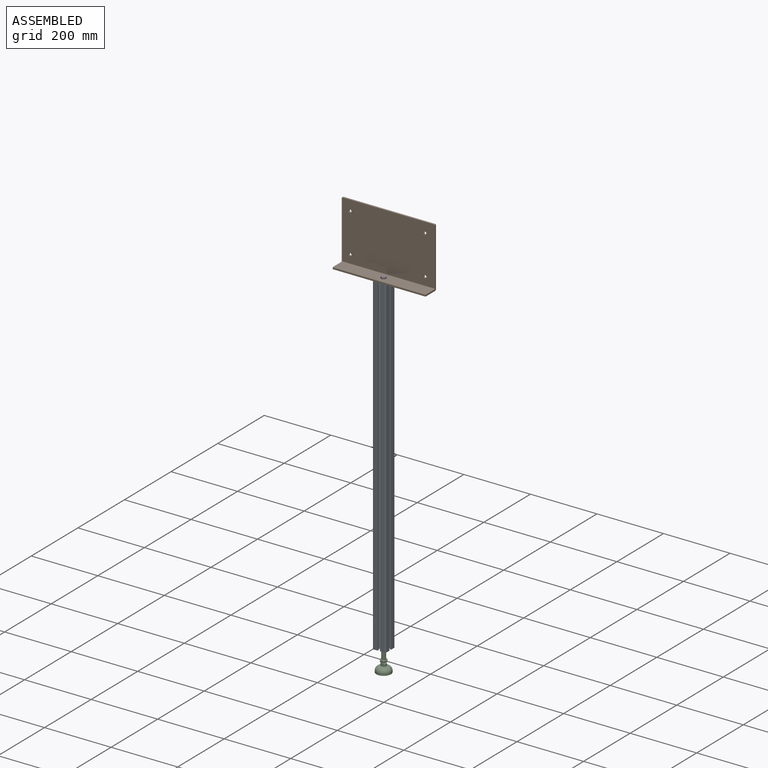
[diagram: assembled view]
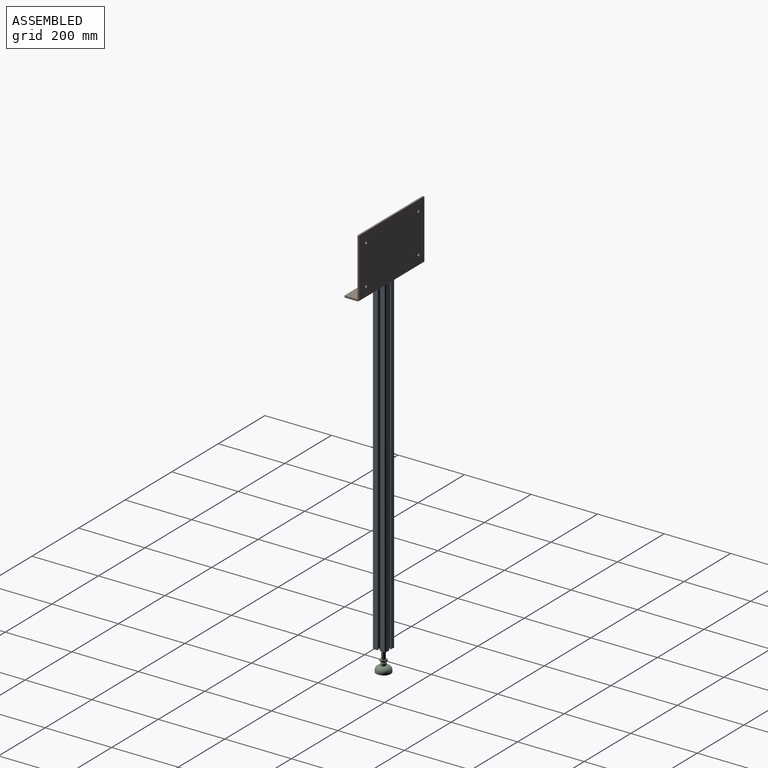
[diagram: assembled view, second angle]
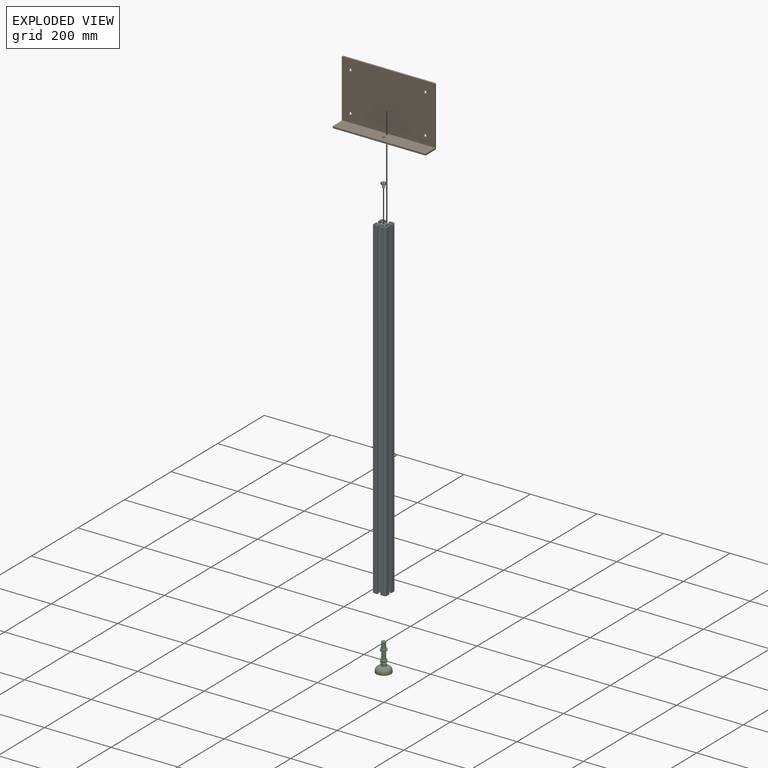
[diagram: exploded view]
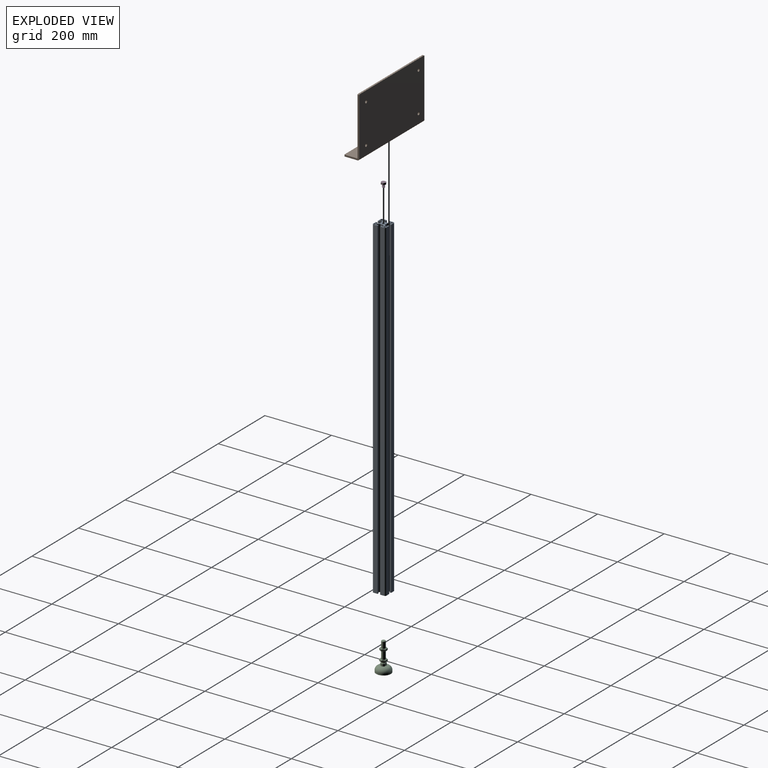
[diagram: exploded view, second angle]
ASSEMBLY  parts=4 mates=3
PART A: 87 faces, bbox 40x40x1000 mm
  f0: plane 1000x12mm, normal (0,-1,0), area 12000mm2, adj f3,f12,f47,f86
  f1: plane 1000x12mm, normal (1,0,0), area 12000mm2, adj f3,f6,f75,f86
  f2: plane 1000x12mm, normal (0,1,0), area 12000mm2, adj f3,f8,f60,f86
  f3: plane 40x40mm, normal (0,0,-1), area 685.6mm2, adj f0,f1,f2,f4,f5,f6,f7,f8
  f4: plane 1000x12mm, normal (-1,0,0), area 12000mm2, adj f3,f10,f37,f86
  f5: plane 1000x12mm, normal (0,-1,0), area 12000mm2, adj f3,f6,f59,f86
  f6: cylinder r=4mm len=1000mm, axis (0,0,-1), area 6283.2mm2, adj f1,f3,f5,f86
  f7: plane 1000x12mm, normal (1,0,0), area 12000mm2, adj f3,f8,f74,f86
  f8: cylinder r=4mm len=1000mm, axis (0,0,-1), area 6283.2mm2, adj f2,f3,f7,f86
  f9: plane 1000x12mm, normal (0,1,0), area 12000mm2, adj f3,f10,f72,f86
  f10: cylinder r=4mm len=1000mm, axis (0,0,-1), area 6283.2mm2, adj f3,f4,f9,f86
  f11: plane 1000x12mm, normal (-1,0,0), area 12000mm2, adj f3,f12,f36,f86
  f12: cylinder r=4mm len=1000mm, axis (0,0,-1), area 6283.2mm2, adj f0,f3,f11,f86
  f13: cylinder r=3.4mm len=1000mm, axis (0,0,-1), area 21362.8mm2, adj f3,f86
  f14: plane 1000x4mm, normal (0,-1,0), area 4000mm2, adj f3,f15,f18,f86
  f15: plane 1000x6mm, normal (-1,0,0), area 6000mm2, adj f3,f14,f16,f86
  f16: plane 1000x6mm, normal (0,1,0), area 6000mm2, adj f3,f15,f17,f86
  f17: plane 1000x4mm, normal (1,0,0), area 4000mm2, adj f3,f16,f18,f86
  f18: cylinder r=2mm len=1000mm, axis (0,0,1), area 3141.6mm2, adj f3,f14,f17,f86
  f19: plane 1000x4mm, normal (0,1,0), area 4000mm2, adj f3,f20,f23,f86
  f20: plane 1000x6mm, normal (1,0,0), area 6000mm2, adj f3,f19,f21,f86
  f21: plane 1000x6mm, normal (0,-1,0), area 6000mm2, adj f3,f20,f22,f86
  f22: plane 1000x4mm, normal (-1,0,0), area 4000mm2, adj f3,f21,f23,f86
  f23: cylinder r=2mm len=1000mm, axis (0,0,1), area 3141.6mm2, adj f3,f19,f22,f86
  f24: plane 1000x4mm, normal (1,0,0), area 4000mm2, adj f3,f25,f28,f86
  f25: plane 1000x6mm, normal (0,-1,0), area 6000mm2, adj f3,f24,f26,f86
  f26: plane 1000x6mm, normal (-1,0,0), area 6000mm2, adj f3,f25,f27,f86
  f27: plane 1000x4mm, normal (0,1,0), area 4000mm2, adj f3,f26,f28,f86
  f28: cylinder r=2mm len=1000mm, axis (0,0,1), area 3141.6mm2, adj f3,f24,f27,f86
  f29: plane 1000x4mm, normal (-1,0,0), area 4000mm2, adj f3,f30,f33,f86
  f30: plane 1000x6mm, normal (0,1,0), area 6000mm2, adj f3,f29,f31,f86
  f31: plane 1000x6mm, normal (1,0,0), area 6000mm2, adj f3,f30,f32,f86
  f32: plane 1000x4mm, normal (0,-1,0), area 4000mm2, adj f3,f31,f33,f86
  f33: cylinder r=2mm len=1000mm, axis (0,0,1), area 3141.6mm2, adj f3,f29,f32,f86
  f34: plane 1000x1.85mm, normal (0,-1,0), area 1850mm2, adj f3,f35,f46,f86
  f35: plane 1000x2.72mm, normal (1,0,0), area 2717.9mm2, adj f3,f34,f36,f86
  f36: plane 1000x4.5mm, normal (0,1,0), area 4500mm2, adj f3,f11,f35,f86
  f37: plane 1000x4.5mm, normal (0,-1,0), area 4500mm2, adj f3,f4,f38,f86
  f38: plane 1000x2.72mm, normal (1,0,0), area 2717.9mm2, adj f3,f37,f39,f86
  f39: plane 1000x1.85mm, normal (0,1,0), area 1850mm2, adj f3,f38,f40,f86
  f40: plane 1000x3.5mm, normal (1,0,0), area 3503mm2, adj f3,f39,f41,f86
  f41: plane 1000x5.35mm, normal (0,-1,0), area 5350mm2, adj f3,f40,f42,f86
  f42: plane 1000x6.22mm, normal (-0.83,-0.56,0), area 7534.1mm2, adj f3,f41,f43,f86
  f43: plane 1000x8mm, normal (-1,0,0), area 8000mm2, adj f3,f42,f44,f86
  f44: plane 1000x6.22mm, normal (-0.83,0.56,0), area 7534.1mm2, adj f3,f43,f45,f86
  f45: plane 1000x5.35mm, normal (0,1,0), area 5350mm2, adj f3,f44,f46,f86
  f46: plane 1000x3.5mm, normal (1,0,0), area 3503mm2, adj f3,f34,f45,f86
  f47: plane 1000x4.5mm, normal (1,0,0), area 4500mm2, adj f0,f3,f48,f86
  f48: plane 1000x2.72mm, normal (0,1,0), area 2717.9mm2, adj f3,f47,f49,f86
  f49: plane 1000x1.85mm, normal (-1,0,0), area 1850mm2, adj f3,f48,f50,f86
  f50: plane 1000x3.5mm, normal (0,1,0), area 3503mm2, adj f3,f49,f51,f86
  f51: plane 1000x5.35mm, normal (1,0,0), area 5350mm2, adj f3,f50,f52,f86
  f52: plane 1000x6.22mm, normal (0.56,-0.83,0), area 7534.1mm2, adj f3,f51,f53,f86
  f53: plane 1000x8mm, normal (0,-1,0), area 8000mm2, adj f3,f52,f54,f86
  f54: plane 1000x6.22mm, normal (-0.56,-0.83,0), area 7534.1mm2, adj f3,f53,f55,f86
  f55: plane 1000x5.35mm, normal (-1,0,0), area 5350mm2, adj f3,f54,f56,f86
  f56: plane 1000x3.5mm, normal (0,1,0), area 3503mm2, adj f3,f55,f57,f86
  f57: plane 1000x1.85mm, normal (1,0,0), area 1850mm2, adj f3,f56,f58,f86
  f58: plane 1000x2.72mm, normal (0,1,0), area 2717.9mm2, adj f3,f57,f59,f86
  f59: plane 1000x4.5mm, normal (-1,0,0), area 4500mm2, adj f3,f5,f58,f86
  f60: plane 1000x4.5mm, normal (-1,0,0), area 4500mm2, adj f2,f3,f61,f86
  f61: plane 1000x2.72mm, normal (0,-1,0), area 2717.9mm2, adj f3,f60,f62,f86
  f62: plane 1000x1.85mm, normal (1,0,0), area 1850mm2, adj f3,f61,f63,f86
  f63: plane 1000x3.5mm, normal (0,-1,0), area 3503mm2, adj f3,f62,f64,f86
  f64: plane 1000x5.35mm, normal (-1,0,0), area 5350mm2, adj f3,f63,f65,f86
  f65: plane 1000x6.22mm, normal (-0.56,0.83,0), area 7534.1mm2, adj f3,f64,f66,f86
  f66: plane 1000x8mm, normal (0,1,0), area 8000mm2, adj f3,f65,f67,f86
  f67: plane 1000x6.22mm, normal (0.56,0.83,0), area 7534.1mm2, adj f3,f66,f68,f86
  f68: plane 1000x5.35mm, normal (1,0,0), area 5350mm2, adj f3,f67,f69,f86
  f69: plane 1000x3.5mm, normal (0,-1,0), area 3503mm2, adj f3,f68,f70,f86
  f70: plane 1000x1.85mm, normal (-1,0,0), area 1850mm2, adj f3,f69,f71,f86
  f71: plane 1000x2.72mm, normal (0,-1,0), area 2717.9mm2, adj f3,f70,f72,f86
  f72: plane 1000x4.5mm, normal (1,0,0), area 4500mm2, adj f3,f9,f71,f86
  f73: plane 1000x2.72mm, normal (-1,0,0), area 2717.9mm2, adj f3,f74,f85,f86
  f74: plane 1000x4.5mm, normal (0,-1,0), area 4500mm2, adj f3,f7,f73,f86
  f75: plane 1000x4.5mm, normal (0,1,0), area 4500mm2, adj f1,f3,f76,f86
  f76: plane 1000x2.72mm, normal (-1,0,0), area 2717.9mm2, adj f3,f75,f77,f86
  f77: plane 1000x1.85mm, normal (0,-1,0), area 1850mm2, adj f3,f76,f78,f86
  f78: plane 1000x3.5mm, normal (-1,0,0), area 3503mm2, adj f3,f77,f79,f86
  f79: plane 1000x5.35mm, normal (0,1,0), area 5350mm2, adj f3,f78,f80,f86
  f80: plane 1000x6.22mm, normal (0.83,0.56,0), area 7534.1mm2, adj f3,f79,f81,f86
  f81: plane 1000x8mm, normal (1,0,0), area 8000mm2, adj f3,f80,f82,f86
  f82: plane 1000x6.22mm, normal (0.83,-0.56,0), area 7534.1mm2, adj f3,f81,f83,f86
  f83: plane 1000x5.35mm, normal (0,-1,0), area 5350mm2, adj f3,f82,f84,f86
  f84: plane 1000x3.5mm, normal (-1,0,0), area 3503mm2, adj f3,f83,f85,f86
  f85: plane 1000x1.85mm, normal (0,1,0), area 1850mm2, adj f3,f73,f84,f86
  f86: plane 40x40mm, normal (0,0,1), area 685.6mm2, adj f0,f1,f2,f4,f5,f6,f7,f8
PART B: 19 faces, bbox 280x45x180 mm
  f0: plane 280x175mm, normal (0,1,0), area 48771.3mm2, adj f1,f6,f7,f8,f9,f10,f11,f14
  f1: plane 276x5mm, normal (0,0,1), area 1380mm2, adj f0,f2,f14,f16
  f2: plane 280x173mm, normal (0,-1,0), area 48211.3mm2, adj f1,f6,f7,f8,f9,f10,f11,f12
  f3: plane 280x38mm, normal (0,0,1), area 10581.5mm2, adj f4,f6,f7,f12,f13,f15,f18
  f4: plane 276x5mm, normal (0,-1,0), area 1380mm2, adj f3,f5,f13,f15
  f5: plane 280x40mm, normal (0,0,-1), area 11141.5mm2, adj f4,f6,f7,f13,f15,f17,f18
  f6: plane 178x43mm, normal (1,0,0), area 1075.5mm2, adj f0,f2,f3,f5,f12,f15,f16,f17
  f7: plane 178x43mm, normal (-1,0,0), area 1075.5mm2, adj f0,f2,f3,f5,f12,f13,f14,f17
  f8: cylinder r=4.25mm len=8.5mm, axis (0,-1,0), area 133.5mm2, adj f0,f2
  f9: cylinder r=4.25mm len=8.5mm, axis (0,-1,0), area 133.5mm2, adj f0,f2
  f10: cylinder r=4.25mm len=8.5mm, axis (0,-1,0), area 133.5mm2, adj f0,f2
  f11: cylinder r=4.25mm len=8.5mm, axis (0,-1,0), area 133.5mm2, adj f0,f2
  f12: cylinder r=2mm len=280mm, axis (1,0,0), area 879.6mm2, adj f2,f3,f6,f7
  f13: cylinder r=2mm len=5mm, axis (0,0,-1), area 15.7mm2, adj f3,f4,f5,f7
  f14: cylinder r=2mm len=5mm, axis (0,-1,0), area 15.7mm2, adj f0,f1,f2,f7
  f15: cylinder r=2mm len=5mm, axis (0,0,1), area 15.7mm2, adj f3,f4,f5,f6
  f16: cylinder r=2mm len=5mm, axis (0,1,0), area 15.7mm2, adj f0,f1,f2,f6
  f17: cylinder r=5mm len=280mm, axis (-1,0,0), area 2199.1mm2, adj f0,f5,f6,f7
  f18: cylinder r=4.25mm len=8.5mm, axis (0,0,1), area 133.5mm2, adj f3,f5
PART C: 69 faces, bbox 44x44x85 mm
  f0: plane 10x10mm, normal (0,0,1), area 78.5mm2, adj f1
  f1: cone r=6mm half-angle=45deg, axis (0,0,-1), area 48.9mm2, adj f0,f2
  f2: cylinder r=6mm len=19mm, axis (0,0,1), area 716.3mm2, adj f1,f3
  f3: plane 18x18mm, normal (0,0,1), area 141.4mm2, adj f2,f4,f5,f6,f7,f8,f9
  f4: cone r=10.4mm half-angle=60deg, axis (0,0,-1), area 5mm2, adj f3,f10,f11
  f5: cone r=10.4mm half-angle=60deg, axis (0,0,-1), area 5mm2, adj f3,f11,f12
  f6: cone r=10.4mm half-angle=60deg, axis (0,0,-1), area 5mm2, adj f3,f12,f13
  f7: cone r=10.4mm half-angle=60deg, axis (0,0,-1), area 5mm2, adj f3,f13,f14
  f8: cone r=10.4mm half-angle=60deg, axis (0,0,-1), area 5mm2, adj f3,f10,f15
  f9: cone r=10.4mm half-angle=60deg, axis (0,0,-1), area 5mm2, adj f3,f14,f15
  f10: plane 10.39x6mm, normal (0,-1,0), area 56.6mm2, adj f4,f8,f11,f15,f16,f17
  f11: plane 9x6mm, normal (-0.87,-0.5,0), area 56.6mm2, adj f4,f5,f10,f12,f17,f18
  f12: plane 9x6mm, normal (-0.87,0.5,0), area 56.6mm2, adj f5,f6,f11,f13,f18,f19
  f13: plane 10.39x6mm, normal (0,1,0), area 56.6mm2, adj f6,f7,f12,f14,f19,f20
  f14: plane 9x6mm, normal (0.87,0.5,0), area 56.6mm2, adj f7,f9,f13,f15,f20,f21
  f15: plane 9x6mm, normal (0.87,-0.5,0), area 56.6mm2, adj f8,f9,f10,f14,f16,f21
  f16: cone r=10.4mm half-angle=60deg, axis (0,0,1), area 5mm2, adj f10,f15,f22
  f17: cone r=10.4mm half-angle=60deg, axis (0,0,1), area 5mm2, adj f10,f11,f22
  f18: cone r=10.4mm half-angle=60deg, axis (0,0,1), area 5mm2, adj f11,f12,f22
  f19: cone r=10.4mm half-angle=60deg, axis (0,0,1), area 5mm2, adj f12,f13,f22
  f20: cone r=10.4mm half-angle=60deg, axis (0,0,1), area 5mm2, adj f13,f14,f22
  f21: cone r=10.4mm half-angle=60deg, axis (0,0,1), area 5mm2, adj f14,f15,f22
  f22: plane 18x18mm, normal (0,0,-1), area 141.4mm2, adj f16,f17,f18,f19,f20,f21,f23
  f23: cylinder r=6mm len=24mm, axis (0,0,1), area 904.8mm2, adj f22,f24
  f24: plane 18x18mm, normal (0,0,1), area 141.4mm2, adj f23,f26,f27,f28,f29,f30,f31
  f25: cone r=1.89mm half-angle=35deg, axis (0,0,-1), area 19.6mm2, adj f32
  f26: cone r=10.4mm half-angle=60deg, axis (0,0,-1), area 5mm2, adj f24,f33,f34
  f27: cone r=10.4mm half-angle=60deg, axis (0,0,-1), area 5mm2, adj f24,f34,f35
  f28: cone r=10.4mm half-angle=60deg, axis (0,0,-1), area 5mm2, adj f24,f35,f36
  f29: cone r=10.4mm half-angle=60deg, axis (0,0,-1), area 5mm2, adj f24,f36,f37
  f30: cone r=10.4mm half-angle=60deg, axis (0,0,-1), area 5mm2, adj f24,f33,f38
  f31: cone r=10.4mm half-angle=60deg, axis (0,0,-1), area 5mm2, adj f24,f37,f38
  f32: plane 10x10mm, normal (0,0,-1), area 67.3mm2, adj f25,f39
  f33: plane 10.39x6mm, normal (0,-1,0), area 56.6mm2, adj f26,f30,f34,f38,f40,f41
  f34: plane 9x6mm, normal (-0.87,-0.5,0), area 56.6mm2, adj f26,f27,f33,f35,f41,f42
  f35: plane 9x6mm, normal (-0.87,0.5,0), area 56.6mm2, adj f27,f28,f34,f36,f42,f43
  f36: plane 10.39x6mm, normal (0,1,0), area 56.6mm2, adj f28,f29,f35,f37,f43,f44
  f37: plane 9x6mm, normal (0.87,0.5,0), area 56.6mm2, adj f29,f31,f36,f38,f44,f45
  f38: plane 9x6mm, normal (0.87,-0.5,0), area 56.6mm2, adj f30,f31,f33,f37,f40,f45
  f39: cylinder r=5mm len=10mm, axis (0,0,1), area 49.7mm2, adj f32,f46
  f40: cone r=10.4mm half-angle=60deg, axis (0,0,1), area 5mm2, adj f33,f38,f47
  f41: cone r=10.4mm half-angle=60deg, axis (0,0,1), area 5mm2, adj f33,f34,f47
  f42: cone r=10.4mm half-angle=60deg, axis (0,0,1), area 5mm2, adj f34,f35,f47
  f43: cone r=10.4mm half-angle=60deg, axis (0,0,1), area 5mm2, adj f35,f36,f47
  f44: cone r=10.4mm half-angle=60deg, axis (0,0,1), area 5mm2, adj f36,f37,f47
  f45: cone r=10.4mm half-angle=60deg, axis (0,0,1), area 5mm2, adj f37,f38,f47
  f46: revolved ~13.18x13.11mm, area 61.2mm2, adj f39,f48
  f47: plane 18x18mm, normal (0,0,-1), area 141.4mm2, adj f40,f41,f42,f43,f44,f45,f49
  f48: cone r=11.81mm half-angle=75deg, axis (0,0,-1), area 314.1mm2, adj f46,f50
  f49: cylinder r=6mm len=12mm, axis (0,0,1), area 103.3mm2, adj f47,f51
  f50: revolved ~34x34mm, area 873.1mm2, adj f48,f53
  f51: cone r=8mm half-angle=60deg, axis (0,0,-1), area 79.6mm2, adj f49,f52,f54,f55,f56
  f52: plane 9.33x7.97mm, normal (0,1,0), area 71.5mm2, adj f51,f54,f55,f57,f59,f60
  f53: cylinder r=17mm len=34mm, axis (0,0,1), area 534.1mm2, adj f50,f58
  f54: cylinder r=8mm len=13mm, axis (0,0,1), area 106.4mm2, adj f51,f52,f56,f59
  f55: cylinder r=8mm len=13mm, axis (0,0,1), area 106.4mm2, adj f51,f52,f56,f60
  f56: plane 9.33x7.97mm, normal (0,-1,0), area 71.5mm2, adj f51,f54,f55,f59,f60,f61
  f57: plane 8.8x1.35mm, normal (0,0,1), area 8mm2, adj f52,f63
  f58: plane 44x44mm, normal (0,0,-1), area 612.6mm2, adj f53,f62
  f59: revolved ~13.08x3.6mm, area 2.7mm2, adj f52,f54,f56,f63
  f60: revolved ~13.08x3.6mm, area 2.7mm2, adj f52,f55,f56,f63
  f61: plane 8.8x1.35mm, normal (0,0,1), area 8mm2, adj f56,f63
  f62: cylinder r=22mm len=44mm, axis (0,0,1), area 691.2mm2, adj f58,f64
  f63: cone r=13.11mm half-angle=75deg, axis (0,0,-1), area 358.3mm2, adj f57,f59,f60,f61,f64
  f64: torus R=10mm, axis (0,0,1), area 1860.9mm2, adj f62,f63
  f65: cylinder r=3.75mm len=7.5mm, axis (0,0,1), area 97.1mm2, adj f66,f67
  f66: revolved ~8.05x8mm, area 6.3mm2, adj f65,f68
  f67: revolved ~8.05x8mm, area 6.3mm2, adj f65,f68
  f68: cylinder r=4mm len=8mm, axis (0,0,1), area 103.6mm2, adj f66,f67
PART D: 21 faces, bbox 16.1x15.6x15.6 mm
  f0: cylinder r=4mm len=9.06mm, axis (1,0,0), area 28.5mm2, adj f1,f2,f5,f12
  f1: bspline ~10.63x8mm, area 161.8mm2, adj f0,f3,f5,f12,f19
  f2: bspline ~10.34x7.99mm, area 160.5mm2, adj f0,f3,f5,f12,f19
  f3: bspline ~10.19x6.37mm, area 24.8mm2, adj f1,f2,f5,f19
  f4: plane 6.13x6.13mm, normal (1,0,0), area 29.5mm2, adj f5
  f5: cone r=3.06mm half-angle=45deg, axis (-1,0,0), area 16.1mm2, adj f0,f1,f2,f3,f4
  f6: plane 8.12x5.92mm, normal (0,0,-1), area 38.3mm2, adj f7,f11,f12,f15,f16
  f7: plane 7.12x5.92mm, normal (0,-0.87,-0.5), area 38.3mm2, adj f6,f8,f12,f14,f15
  f8: plane 7.12x5.92mm, normal (0,-0.87,0.5), area 38.3mm2, adj f7,f9,f12,f13,f14
  f9: plane 8.12x5.92mm, normal (0,0,1), area 38.3mm2, adj f8,f10,f12,f13,f18
  f10: plane 7.12x5.92mm, normal (0,0.87,0.5), area 38.3mm2, adj f9,f11,f12,f17,f18
  f11: plane 7.12x5.92mm, normal (0,0.87,-0.5), area 38.3mm2, adj f6,f10,f12,f16,f17
  f12: plane 15.38x13.37mm, normal (1,0,0), area 102mm2, adj f0,f1,f2,f6,f7,f8,f9,f10
  f13: cone r=6.5mm half-angle=60deg, axis (1,0,0), area 4.2mm2, adj f8,f9,f20
  f14: cone r=6.5mm half-angle=60deg, axis (1,0,0), area 4.2mm2, adj f7,f8,f20
  f15: cone r=6.5mm half-angle=60deg, axis (1,0,0), area 4.2mm2, adj f6,f7,f20
  f16: cone r=6.5mm half-angle=60deg, axis (1,0,0), area 4.2mm2, adj f6,f11,f20
  f17: cone r=6.5mm half-angle=60deg, axis (1,0,0), area 4.2mm2, adj f10,f11,f20
  f18: cone r=6.5mm half-angle=60deg, axis (1,0,0), area 4.2mm2, adj f9,f10,f20
  f19: plane 7.22x6.1mm, normal (1,0,0), area 3.5mm2, adj f1,f2,f3,f12
  f20: plane 13x13mm, normal (-1,0,0), area 132.7mm2, adj f13,f14,f15,f16,f17,f18
PLACE A t=(-19.08,17.57,-1090.69)mm
PLACE B t=(-139.08,17.57,1.81)mm
PLACE C t=(0.92,-2.43,-1155.69)mm
PLACE D rot(axis=(0.71,0,-0.71),180deg) t=(0.81,-2.5,-91.04)mm
MATE fastened C.f1 <-> A.f13  axis (0,0,1) through (0.92,-2.43,-1090.69)mm
MATE fastened A.f13 <-> B.f18  axis (0,0,1) through (0.92,-2.43,-90.69)mm
MATE fastened D.f19 <-> B.f18  axis (0,0,-1) through (0.92,-2.43,-85.69)mm
